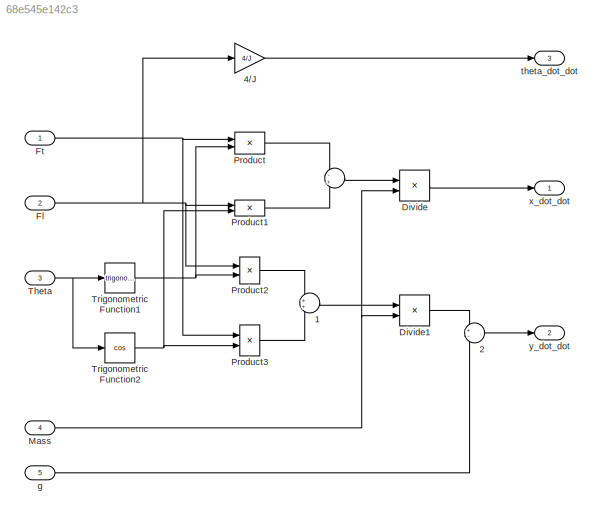
MODEL slx_68e545e142c3
KIND model
CONFIG AbsTol = auto
CONFIG FixedStep = auto
CONFIG MaxStep = auto
CONFIG MinStep = auto
CONFIG RelTol = 1e-3
CONFIG SampleTimeConstraint = Unconstrained
CONFIG Solver = ode45
CONFIG SolverMode = Auto
CONFIG SolverName = ode45
CONFIG StartTime = 0.0
CONFIG StopTime = 10.0
BLOCK [Sum]  
  IconShape = round
  InputSameDT = off
  Inputs = -+
  OutDataTypeStr = Inherit: Inherit via internal rule
  Ports = [2, 1]
  SaturateOnIntegerOverflow = off
BLOCK [Sum]  1
  IconShape = round
  InputSameDT = off
  OutDataTypeStr = Inherit: Inherit via internal rule
  Ports = [2, 1]
  SaturateOnIntegerOverflow = off
BLOCK [Sum]  2
  IconShape = round
  InputSameDT = off
  Inputs = +-
  OutDataTypeStr = Inherit: Inherit via internal rule
  Ports = [2, 1]
  SaturateOnIntegerOverflow = off
BLOCK [Gain] 4//J
  Gain = 4/J
  OutDataTypeStr = Inherit: Inherit via internal rule
  ParamDataTypeStr = Inherit: Inherit via internal rule
  SaturateOnIntegerOverflow = off
BLOCK [Product] Divide
  InputSameDT = off
  Inputs = */
  OutDataTypeStr = Inherit: Inherit via internal rule
  Ports = [2, 1]
  RndMeth = Floor
  SaturateOnIntegerOverflow = off
BLOCK [Product] Divide1
  InputSameDT = off
  Inputs = */
  OutDataTypeStr = Inherit: Inherit via internal rule
  Ports = [2, 1]
  RndMeth = Floor
  SaturateOnIntegerOverflow = off
BLOCK [Inport] Fl
  IconDisplay = Port number
  Port = 2
BLOCK [Inport] Ft
  IconDisplay = Port number
BLOCK [Inport] Mass 
  IconDisplay = Port number
  Port = 4
BLOCK [Product] Product
  InputSameDT = off
  OutDataTypeStr = Inherit: Inherit via internal rule
  Ports = [2, 1]
  RndMeth = Floor
  SaturateOnIntegerOverflow = off
BLOCK [Product] Product1
  InputSameDT = off
  OutDataTypeStr = Inherit: Inherit via internal rule
  Ports = [2, 1]
  RndMeth = Floor
  SaturateOnIntegerOverflow = off
BLOCK [Product] Product2
  InputSameDT = off
  OutDataTypeStr = Inherit: Inherit via internal rule
  Ports = [2, 1]
  RndMeth = Floor
  SaturateOnIntegerOverflow = off
BLOCK [Product] Product3
  InputSameDT = off
  OutDataTypeStr = Inherit: Inherit via internal rule
  Ports = [2, 1]
  RndMeth = Floor
  SaturateOnIntegerOverflow = off
BLOCK [Inport] Theta
  IconDisplay = Port number
  Port = 3
BLOCK [Trigonometry] Trigonometric Function1
  Ports = [1, 1]
BLOCK [Trigonometry] Trigonometric Function2
  Operator = cos
  Ports = [1, 1]
BLOCK [Inport] g 
  IconDisplay = Port number
  Port = 5
BLOCK [Outport] theta_dot_dot
  IconDisplay = Port number
  Port = 3
BLOCK [Outport] x_dot_dot
  IconDisplay = Port number
BLOCK [Outport] y_dot_dot
  IconDisplay = Port number
  Port = 2
LINE  1:1 -> Divide1:1
LINE  2:1 -> y_dot_dot:1
LINE  :1 -> Divide:1
LINE 4//J:1 -> theta_dot_dot:1
LINE Divide1:1 ->  2:1
LINE Divide:1 -> x_dot_dot:1
NET Fl:1 -> 4//J:1, Product1:1, Product2:1
NET Ft:1 -> Product3:1, Product:1
NET Mass :1 -> Divide1:2, Divide:2
LINE Product1:1 ->  :2
LINE Product2:1 ->  1:1
LINE Product3:1 ->  1:2
LINE Product:1 ->  :1
NET Theta:1 -> Trigonometric Function1:1, Trigonometric Function2:1
NET Trigonometric Function1:1 -> Product2:2, Product:2
NET Trigonometric Function2:1 -> Product1:2, Product3:2
LINE g :1 ->  2:2
note: NET lines group one-source signal fan-out (src -> all destinations, sorted); 1:1 wires keep LINE
